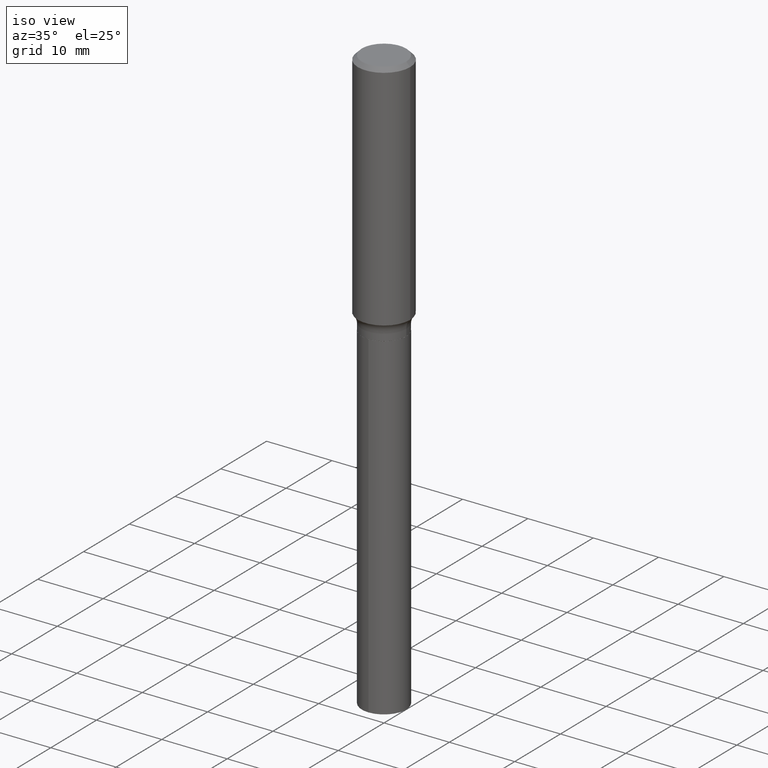
[diagram: clean part render]
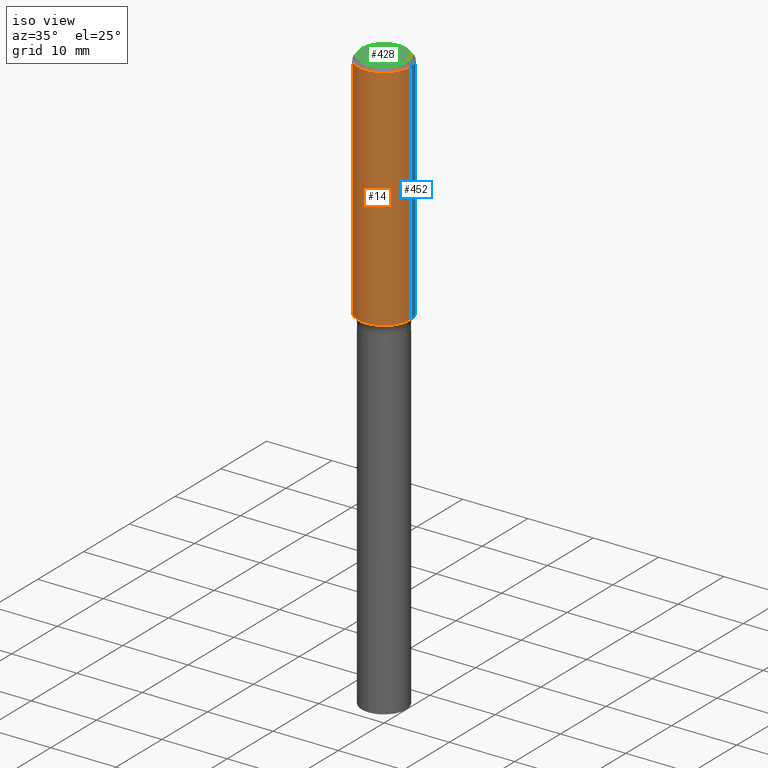
[diagram: same view with three faces highlighted in distinct colors, each labeled with its STEP entity id]
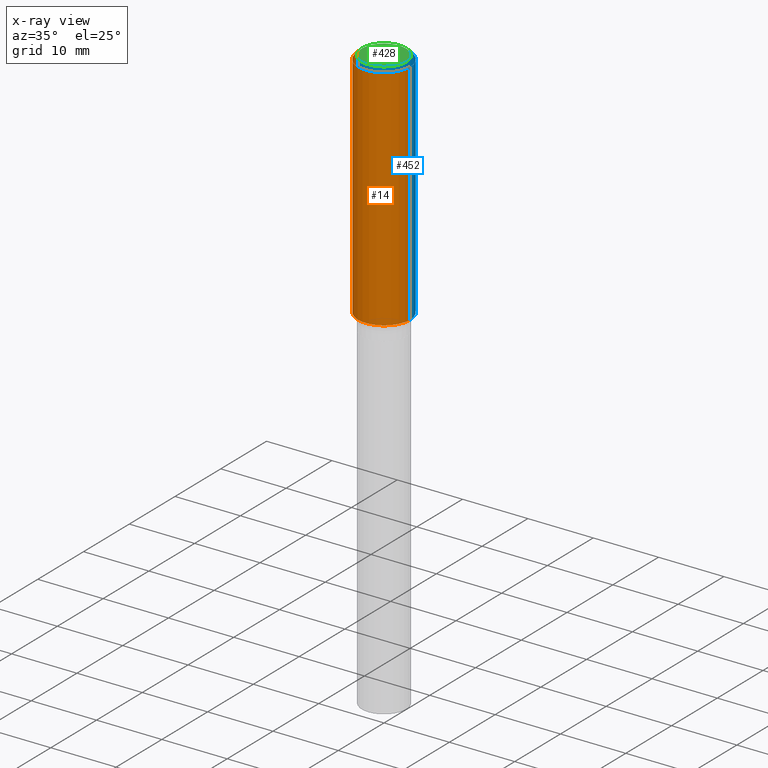
[diagram: x-ray of the same camera — body ghosted, the three highlighted faces saturated]
A machine part, iso view with three faces highlighted in distinct colors.
The next image is the same camera in x-ray (body ghosted, the three faces saturated) — at least one of them is partly hidden behind the body in this view.
Their STEP definitions:

[orange] entity #14 — the highlighted cylindrical surface (edge-blend (fillet) strip) has radius 4.0005 mm, axis along (-0, 0, 1).
#6 = CARTESIAN_POINT ( 'NONE',  ( 0.1575000000000000566, -1.099816621735587480E-15, 7.679978421878602237E-30 ) ) ;
#8 = DIRECTION ( 'NONE',  ( 1.000000000000000000, -6.982962677686265922E-15, 0.000000000000000000 ) ) ;
#14 = ADVANCED_FACE ( 'NONE', ( #123 ), #349, .T. ) ;
#18 = EDGE_CURVE ( 'NONE', #322, #356, #378, .T. ) ;
#46 = CARTESIAN_POINT ( 'NONE',  ( -0.1575000000000000844, -3.768455484205395919E-15, -1.399852904454296887 ) ) ;
#47 = ORIENTED_EDGE ( 'NONE', *, *, #208, .T. ) ;
#70 = DIRECTION ( 'NONE',  ( 1.000000000000000000, -6.982962677686267499E-15, 4.876176775795936353E-29 ) ) ;
#75 = DIRECTION ( 'NONE',  ( -2.445468806185136597E-29, 3.491481338843145583E-15, 1.000000000000000000 ) ) ;
#79 = EDGE_CURVE ( 'NONE', #451, #117, #422, .T. ) ;
#84 = CIRCLE ( 'NONE', #293, 0.1575000000000001399 ) ;
#101 = CARTESIAN_POINT ( 'NONE',  ( 0.1575000000000000844, -5.987376914763141792E-15, -1.399852904454296887 ) ) ;
#114 = AXIS2_PLACEMENT_3D ( 'NONE', #415, #75, #70 ) ;
#117 = VERTEX_POINT ( 'NONE', #491 ) ;
#123 = FACE_OUTER_BOUND ( 'NONE', #204, .T. ) ;
#126 = DIRECTION ( 'NONE',  ( 1.000000000000000000, -6.982962677686268288E-15, 0.000000000000000000 ) ) ;
#189 = AXIS2_PLACEMENT_3D ( 'NONE', #195, #351, #8 ) ;
#195 = CARTESIAN_POINT ( 'NONE',  ( 5.777420054612421980E-31, -8.248624663016985234E-17, -0.02362500000000015282 ) ) ;
#196 = ORIENTED_EDGE ( 'NONE', *, *, #18, .F. ) ;
#199 = CIRCLE ( 'NONE', #189, 0.1575000000000000011 ) ;
#204 = EDGE_LOOP ( 'NONE', ( #196, #47, #460, #401 ) ) ;
#208 = EDGE_CURVE ( 'NONE', #322, #451, #84, .T. ) ;
#271 = CARTESIAN_POINT ( 'NONE',  ( -0.1575000000000000566, 1.119104808822158195E-15, -7.747322767151479787E-30 ) ) ;
#274 = CARTESIAN_POINT ( 'NONE',  ( -0.1575000000000000011, -1.365918461006703856E-15, -0.02362500000000015282 ) ) ;
#282 = CARTESIAN_POINT ( 'NONE',  ( 3.423296611090645878E-29, -4.887560293027554312E-15, -1.399852904454296887 ) ) ;
#293 = AXIS2_PLACEMENT_3D ( 'NONE', #282, #393, #126 ) ;
#322 = VERTEX_POINT ( 'NONE', #46 ) ;
#345 = EDGE_CURVE ( 'NONE', #356, #117, #199, .T. ) ;
#349 = CYLINDRICAL_SURFACE ( 'NONE', #114, 0.1575000000000000566 ) ;
#351 = DIRECTION ( 'NONE',  ( -2.445468806185136597E-29, 3.491481338843145583E-15, 1.000000000000000000 ) ) ;
#356 = VERTEX_POINT ( 'NONE', #274 ) ;
#378 = LINE ( 'NONE', #271, #462 ) ;
#393 = DIRECTION ( 'NONE',  ( -2.445468806185136597E-29, 3.491481338843145583E-15, 1.000000000000000000 ) ) ;
#401 = ORIENTED_EDGE ( 'NONE', *, *, #345, .F. ) ;
#404 = VECTOR ( 'NONE', #458, 39.37007874015748143 ) ;
#415 = CARTESIAN_POINT ( 'NONE',  ( 0.000000000000000000, 0.000000000000000000, 0.000000000000000000 ) ) ;
#422 = LINE ( 'NONE', #6, #404 ) ;
#424 = DIRECTION ( 'NONE',  ( -2.445468806185136877E-29, 3.491481338843145188E-15, 1.000000000000000000 ) ) ;
#451 = VERTEX_POINT ( 'NONE', #101 ) ;
#458 = DIRECTION ( 'NONE',  ( -2.445468806185136877E-29, 3.491481338843145188E-15, 1.000000000000000000 ) ) ;
#460 = ORIENTED_EDGE ( 'NONE', *, *, #79, .T. ) ;
#462 = VECTOR ( 'NONE', #424, 39.37007874015748143 ) ;
#491 = CARTESIAN_POINT ( 'NONE',  ( 0.1575000000000000011, -1.182302868365756679E-15, -0.02362500000000015282 ) ) ;

[blue] entity #452 — the highlighted cylindrical surface (edge-blend (fillet) strip) has radius 4.0005 mm, axis along (-0, 0, 1).
#6 = CARTESIAN_POINT ( 'NONE',  ( 0.1575000000000000566, -1.099816621735587480E-15, 7.679978421878602237E-30 ) ) ;
#16 = ORIENTED_EDGE ( 'NONE', *, *, #459, .T. ) ;
#18 = EDGE_CURVE ( 'NONE', #322, #356, #378, .T. ) ;
#27 = CYLINDRICAL_SURFACE ( 'NONE', #330, 0.1575000000000000566 ) ;
#41 = CIRCLE ( 'NONE', #447, 0.1575000000000001399 ) ;
#46 = CARTESIAN_POINT ( 'NONE',  ( -0.1575000000000000844, -3.768455484205395919E-15, -1.399852904454296887 ) ) ;
#79 = EDGE_CURVE ( 'NONE', #451, #117, #422, .T. ) ;
#101 = CARTESIAN_POINT ( 'NONE',  ( 0.1575000000000000844, -5.987376914763141792E-15, -1.399852904454296887 ) ) ;
#106 = DIRECTION ( 'NONE',  ( -2.445468806185136597E-29, 3.491481338843145583E-15, 1.000000000000000000 ) ) ;
#109 = FACE_OUTER_BOUND ( 'NONE', #167, .T. ) ;
#117 = VERTEX_POINT ( 'NONE', #491 ) ;
#132 = DIRECTION ( 'NONE',  ( -2.445468806185136597E-29, 3.491481338843145583E-15, 1.000000000000000000 ) ) ;
#142 = DIRECTION ( 'NONE',  ( -2.445468806185136597E-29, 3.491481338843145583E-15, 1.000000000000000000 ) ) ;
#144 = AXIS2_PLACEMENT_3D ( 'NONE', #359, #132, #273 ) ;
#167 = EDGE_LOOP ( 'NONE', ( #16, #169, #443, #238 ) ) ;
#169 = ORIENTED_EDGE ( 'NONE', *, *, #18, .T. ) ;
#214 = EDGE_CURVE ( 'NONE', #117, #356, #361, .T. ) ;
#238 = ORIENTED_EDGE ( 'NONE', *, *, #79, .F. ) ;
#252 = DIRECTION ( 'NONE',  ( 1.000000000000000000, -6.982962677686267499E-15, 4.876176775795936353E-29 ) ) ;
#257 = DIRECTION ( 'NONE',  ( 1.000000000000000000, -6.982962677686268288E-15, 0.000000000000000000 ) ) ;
#271 = CARTESIAN_POINT ( 'NONE',  ( -0.1575000000000000566, 1.119104808822158195E-15, -7.747322767151479787E-30 ) ) ;
#273 = DIRECTION ( 'NONE',  ( 1.000000000000000000, -6.982962677686265922E-15, 0.000000000000000000 ) ) ;
#274 = CARTESIAN_POINT ( 'NONE',  ( -0.1575000000000000011, -1.365918461006703856E-15, -0.02362500000000015282 ) ) ;
#292 = CARTESIAN_POINT ( 'NONE',  ( 3.423296611090645878E-29, -4.887560293027554312E-15, -1.399852904454296887 ) ) ;
#322 = VERTEX_POINT ( 'NONE', #46 ) ;
#330 = AXIS2_PLACEMENT_3D ( 'NONE', #331, #142, #252 ) ;
#331 = CARTESIAN_POINT ( 'NONE',  ( 0.000000000000000000, 0.000000000000000000, 0.000000000000000000 ) ) ;
#356 = VERTEX_POINT ( 'NONE', #274 ) ;
#359 = CARTESIAN_POINT ( 'NONE',  ( 5.777420054612421980E-31, -8.248624663016985234E-17, -0.02362500000000015282 ) ) ;
#361 = CIRCLE ( 'NONE', #144, 0.1575000000000000011 ) ;
#378 = LINE ( 'NONE', #271, #462 ) ;
#404 = VECTOR ( 'NONE', #458, 39.37007874015748143 ) ;
#422 = LINE ( 'NONE', #6, #404 ) ;
#424 = DIRECTION ( 'NONE',  ( -2.445468806185136877E-29, 3.491481338843145188E-15, 1.000000000000000000 ) ) ;
#443 = ORIENTED_EDGE ( 'NONE', *, *, #214, .F. ) ;
#447 = AXIS2_PLACEMENT_3D ( 'NONE', #292, #106, #257 ) ;
#451 = VERTEX_POINT ( 'NONE', #101 ) ;
#452 = ADVANCED_FACE ( 'NONE', ( #109 ), #27, .T. ) ;
#458 = DIRECTION ( 'NONE',  ( -2.445468806185136877E-29, 3.491481338843145188E-15, 1.000000000000000000 ) ) ;
#459 = EDGE_CURVE ( 'NONE', #451, #322, #41, .T. ) ;
#462 = VECTOR ( 'NONE', #424, 39.37007874015748143 ) ;
#491 = CARTESIAN_POINT ( 'NONE',  ( 0.1575000000000000011, -1.182302868365756679E-15, -0.02362500000000015282 ) ) ;

[green] entity #428 — the highlighted planar face has unit normal (0, -0, -1).
#17 = AXIS2_PLACEMENT_3D ( 'NONE', #203, #469, #472 ) ;
#29 = FACE_OUTER_BOUND ( 'NONE', #286, .T. ) ;
#60 = ORIENTED_EDGE ( 'NONE', *, *, #218, .T. ) ;
#64 = AXIS2_PLACEMENT_3D ( 'NONE', #442, #176, #444 ) ;
#94 = DIRECTION ( 'NONE',  ( -2.445468806185136597E-29, 3.491481338843145583E-15, 1.000000000000000000 ) ) ;
#146 = VERTEX_POINT ( 'NONE', #490 ) ;
#163 = VERTEX_POINT ( 'NONE', #201 ) ;
#176 = DIRECTION ( 'NONE',  ( 2.438088387897960049E-29, -3.491481338843145188E-15, -1.000000000000000000 ) ) ;
#181 = EDGE_CURVE ( 'NONE', #163, #146, #232, .T. ) ;
#201 = CARTESIAN_POINT ( 'NONE',  ( 0.1338749999999999940, -1.040731925365424925E-15, 4.101342130351390035E-18 ) ) ;
#203 = CARTESIAN_POINT ( 'NONE',  ( -1.002970424325032604E-46, 1.431975951230895391E-32, 4.101342130344482109E-18 ) ) ;
#206 = AXIS2_PLACEMENT_3D ( 'NONE', #437, #94, #244 ) ;
#218 = EDGE_CURVE ( 'NONE', #146, #163, #425, .T. ) ;
#232 = CIRCLE ( 'NONE', #17, 0.1338749999999999940 ) ;
#244 = DIRECTION ( 'NONE',  ( 1.000000000000000000, -6.982962677686266711E-15, 4.876170806578254279E-29 ) ) ;
#286 = EDGE_LOOP ( 'NONE', ( #60, #360 ) ) ;
#290 = PLANE ( 'NONE',  #64 ) ;
#360 = ORIENTED_EDGE ( 'NONE', *, *, #181, .T. ) ;
#425 = CIRCLE ( 'NONE', #206, 0.1338749999999999940 ) ;
#428 = ADVANCED_FACE ( 'NONE', ( #29 ), #290, .F. ) ;
#437 = CARTESIAN_POINT ( 'NONE',  ( -1.002970424325032604E-46, 1.431975951230895391E-32, 4.101342130344482109E-18 ) ) ;
#442 = CARTESIAN_POINT ( 'NONE',  ( -5.014852121625163022E-47, 7.159879756154476955E-33, 2.050671065172241055E-18 ) ) ;
#444 = DIRECTION ( 'NONE',  ( -1.000000000000000000, 6.982962677686265922E-15, -4.876176775795935793E-29 ) ) ;
#469 = DIRECTION ( 'NONE',  ( -2.445468806185136597E-29, 3.491481338843145583E-15, 1.000000000000000000 ) ) ;
#472 = DIRECTION ( 'NONE',  ( 1.000000000000000000, -6.982962677686266711E-15, 4.876170806578254279E-29 ) ) ;
#490 = CARTESIAN_POINT ( 'NONE',  ( -0.1338749999999999940, 9.760872517903331886E-16, 4.101342130337800673E-18 ) ) ;